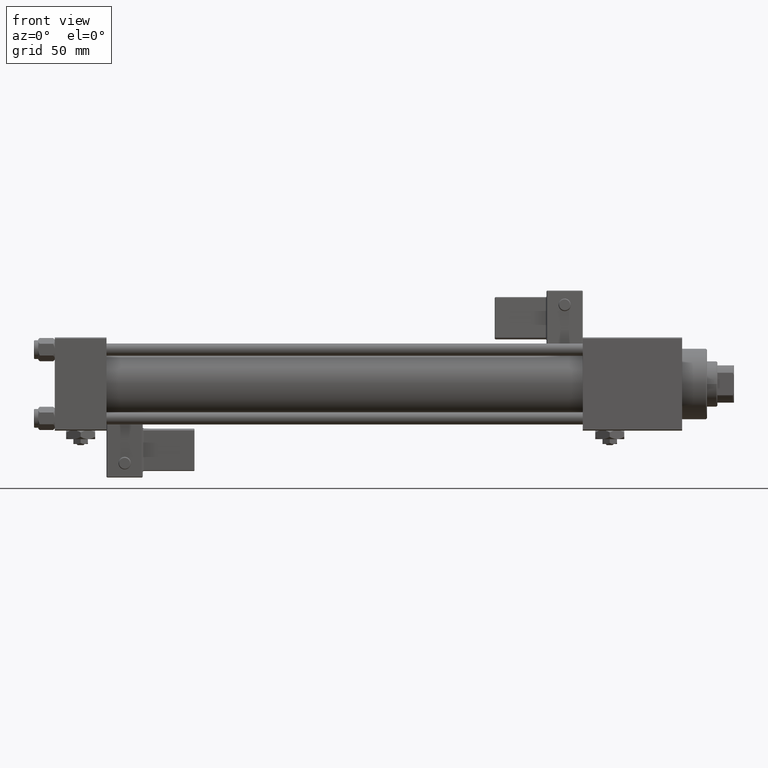
[diagram: clean part render]
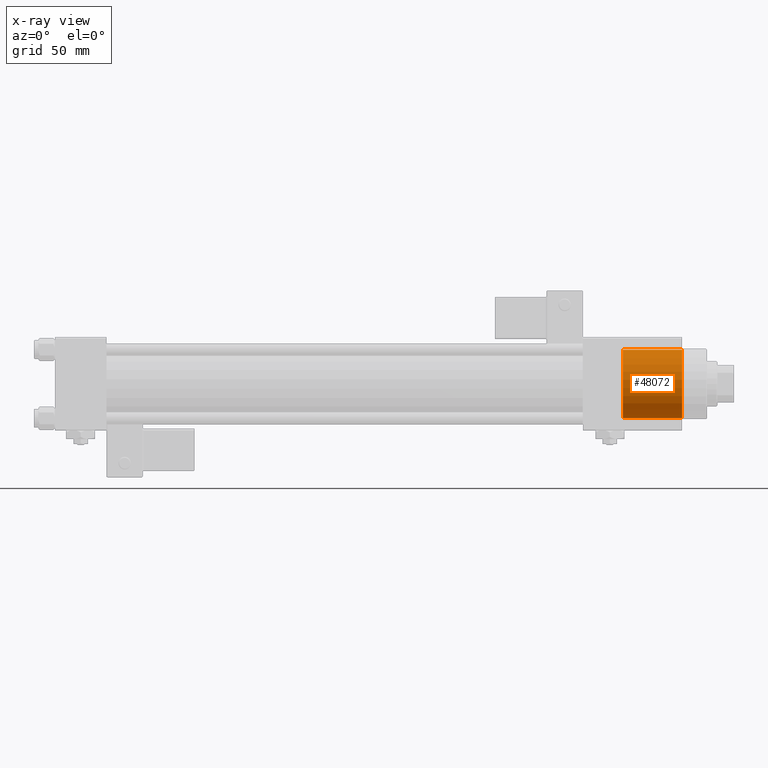
[diagram: x-ray — body ghosted, one internal face saturated and labeled with its STEP entity id]
A machine part, front view, then the same camera in x-ray: the body is ghosted and one INTERNAL B-rep face — a face not visible from any outside direction — is saturated and labeled: STEP entity #48072.
In plain terms, the highlighted cylindrical surface (edge-blend (fillet) strip) has radius 16.5 mm, axis along (-1, -0, -0).
Its self-contained STEP definition (entity closure, byte-faithful):
#2280 = CARTESIAN_POINT ( 'NONE',  ( 0.000000000000000000, 0.000000000000000000, 28.69999999999999929 ) ) ;
#2761 = CARTESIAN_POINT ( 'NONE',  ( 0.000000000000000000, 0.000000000000000000, 0.000000000000000000 ) ) ;
#5110 = DIRECTION ( 'NONE',  ( 1.000000000000000000, 0.000000000000000000, 0.000000000000000000 ) ) ;
#6791 = DIRECTION ( 'NONE',  ( -1.000000000000000000, 0.000000000000000000, 0.000000000000000000 ) ) ;
#7623 = CARTESIAN_POINT ( 'NONE',  ( 16.50000000000000000, 2.020667218593133100E-15, 28.69999999999999929 ) ) ;
#10595 = CARTESIAN_POINT ( 'NONE',  ( 16.50000000000000000, 2.020667218593133100E-15, 0.000000000000000000 ) ) ;
#16665 = CIRCLE ( 'NONE', #48192, 16.50000000000000000 ) ;
#16718 = EDGE_CURVE ( 'NONE', #17722, #23940, #16665, .T. ) ;
#16836 = DIRECTION ( 'NONE',  ( -0.000000000000000000, -0.000000000000000000, -1.000000000000000000 ) ) ;
#17722 = VERTEX_POINT ( 'NONE', #40226 ) ;
#19468 = DIRECTION ( 'NONE',  ( -0.000000000000000000, -0.000000000000000000, -1.000000000000000000 ) ) ;
#21664 = AXIS2_PLACEMENT_3D ( 'NONE', #30765, #22295, #5110 ) ;
#22295 = DIRECTION ( 'NONE',  ( 0.000000000000000000, 0.000000000000000000, 1.000000000000000000 ) ) ;
#22321 = ORIENTED_EDGE ( 'NONE', *, *, #48364, .F. ) ;
#23028 = EDGE_LOOP ( 'NONE', ( #22321, #54202, #33850, #49143 ) ) ;
#23700 = FACE_OUTER_BOUND ( 'NONE', #23028, .T. ) ;
#23940 = VERTEX_POINT ( 'NONE', #10595 ) ;
#27307 = DIRECTION ( 'NONE',  ( -0.000000000000000000, -0.000000000000000000, -1.000000000000000000 ) ) ;
#29336 = AXIS2_PLACEMENT_3D ( 'NONE', #2280, #19468, #6791 ) ;
#29961 = VERTEX_POINT ( 'NONE', #32106 ) ;
#30765 = CARTESIAN_POINT ( 'NONE',  ( 0.000000000000000000, 0.000000000000000000, 28.69999999999999929 ) ) ;
#31581 = CIRCLE ( 'NONE', #21664, 16.50000000000000000 ) ;
#32106 = CARTESIAN_POINT ( 'NONE',  ( -16.50000000000000000, 0.000000000000000000, 28.69999999999999929 ) ) ;
#33850 = ORIENTED_EDGE ( 'NONE', *, *, #36295, .T. ) ;
#34769 = VECTOR ( 'NONE', #27307, 1000.000000000000000 ) ;
#35773 = VERTEX_POINT ( 'NONE', #7623 ) ;
#36295 = EDGE_CURVE ( 'NONE', #29961, #17722, #55207, .T. ) ;
#36319 = LINE ( 'NONE', #48734, #34769 ) ;
#40226 = CARTESIAN_POINT ( 'NONE',  ( -16.50000000000000000, 0.000000000000000000, 0.000000000000000000 ) ) ;
#40885 = CYLINDRICAL_SURFACE ( 'NONE', #29336, 16.50000000000000000 ) ;
#41369 = DIRECTION ( 'NONE',  ( 1.000000000000000000, 0.000000000000000000, 0.000000000000000000 ) ) ;
#46451 = CARTESIAN_POINT ( 'NONE',  ( -16.50000000000000000, 0.000000000000000000, 28.69999999999999929 ) ) ;
#48072 = ADVANCED_FACE ( 'NONE', ( #23700 ), #40885, .T. ) ;
#48192 = AXIS2_PLACEMENT_3D ( 'NONE', #2761, #54362, #41369 ) ;
#48364 = EDGE_CURVE ( 'NONE', #35773, #23940, #36319, .T. ) ;
#48734 = CARTESIAN_POINT ( 'NONE',  ( 16.50000000000000000, 2.020667218593133100E-15, 28.69999999999999929 ) ) ;
#49143 = ORIENTED_EDGE ( 'NONE', *, *, #16718, .T. ) ;
#51550 = EDGE_CURVE ( 'NONE', #29961, #35773, #31581, .T. ) ;
#54202 = ORIENTED_EDGE ( 'NONE', *, *, #51550, .F. ) ;
#54362 = DIRECTION ( 'NONE',  ( 0.000000000000000000, 0.000000000000000000, 1.000000000000000000 ) ) ;
#55107 = VECTOR ( 'NONE', #16836, 1000.000000000000000 ) ;
#55207 = LINE ( 'NONE', #46451, #55107 ) ;